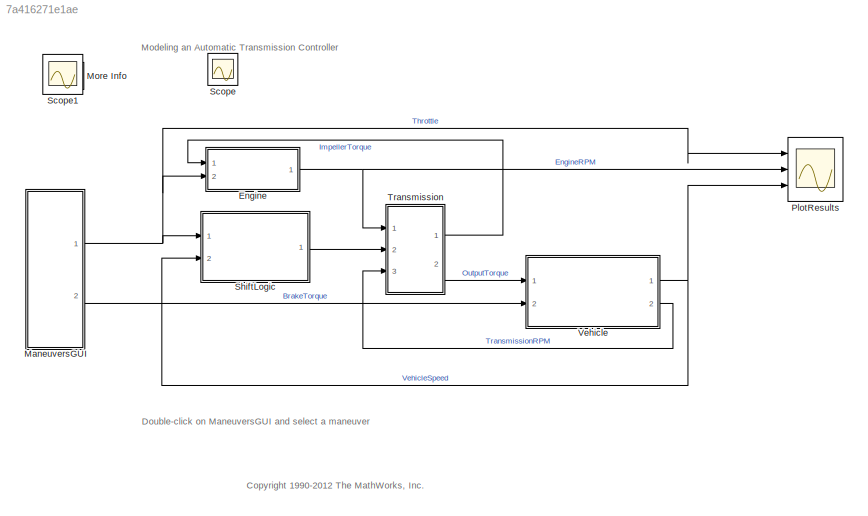
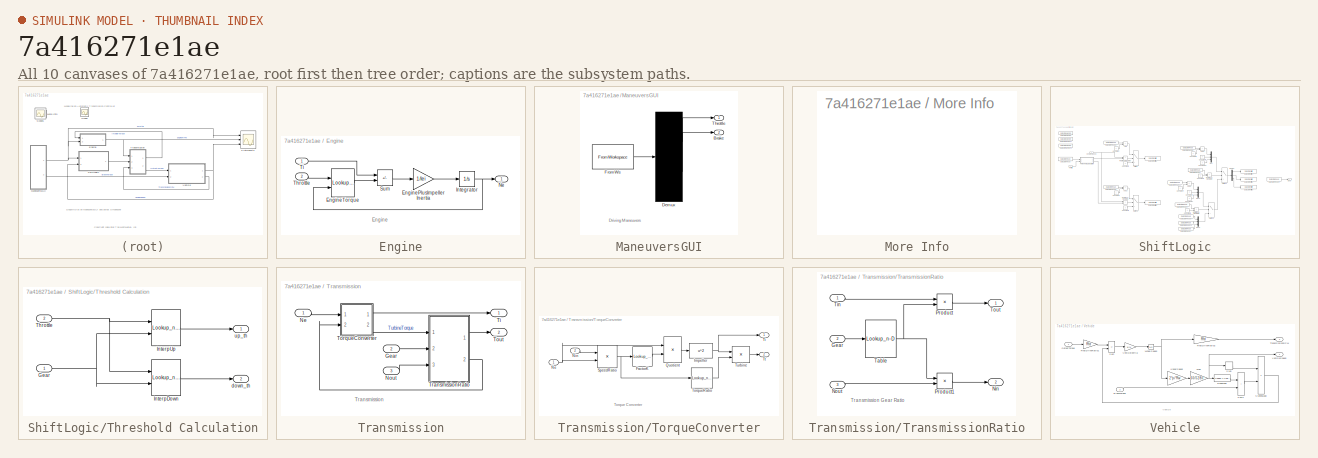
[diagram: thumbnail index - all 10 canvases of the model, root first then tree order]
MODEL slx_7a416271e1ae
KIND model
CONFIG AbsTol = 1e-6
CONFIG EnableMultiTasking = off
CONFIG FixedStep = auto
CONFIG MaxStep = auto
CONFIG MinStep = auto
CONFIG RelTol = 1e-3
CONFIG SampleTimeConstraint = Unconstrained
CONFIG SolverName = ode5
CONFIG StartTime = 0.0
CONFIG StopTime = 30
WORKSPACE source: mxarray member
WORKSPACE CONVERTER_DATA = [0 0.1 0.2 0.3 0.4 0.5 0.6 0.7 0.8 0.81 0.82 0.83 ... (63 elements, 21x3)]
WORKSPACE DOWN_TABLE = [0 0 0 0 0 0 5 5 5 5 30 30 ... (24 elements, 6x4)]
WORKSPACE DOWN_TH_BP = [0 5 40 50 90 100]
WORKSPACE EMAP = [-40 215 245 264 264 267 267 267 267 267 -44 117 ... (110 elements, 10x11)]
WORKSPACE Iei = 0.0219914882836
WORKSPACE NE_VEC = [800 1200 1600 2000 2400 2800 3200 3600 4000 4400 4800]
WORKSPACE TH_VEC = [0 20 30 40 50 60 70 80 90 100]
WORKSPACE TWAIT = 2
WORKSPACE UP_TABLE = [10 10 15 23 40 40 30 30 30 41 70 70 ... (24 elements, 6x4)]
WORKSPACE UP_TH_BP = [0 25 35 50 90 100]
WORKSPACE VEHICLE_DATA = [3.23 40 0.02 1 12.0941478573 0]
BLOCK [SubSystem] Engine
  Ports = [2, 1]
  RequestExecContextInheritance = off
BLOCK [Gain] Engine/EnginePlusImpellerInertia
  Gain = 1/Iei
  OutDataTypeStr = Inherit: Same as input
  ParamDataTypeStr = Inherit: Same as input
  SaturateOnIntegerOverflow = on
BLOCK [Lookup_n-D] Engine/EngineTorque
  BreakpointsForDimension1 = TH_VEC
  BreakpointsForDimension2 = NE_VEC
  InputPortMap = u0,u1
  Ports = [2, 1]
  Table = EMAP
BLOCK [Integrator] Engine/Integrator
  InitialCondition = 1000
  LimitOutput = on
  LowerSaturationLimit = 600
  Ports = [1, 1]
  UpperSaturationLimit = 6000
  ZeroCross = off
BLOCK [Outport] Engine/Ne
  VectorParamsAs1DForOutWhenUnconnected = off
BLOCK [Sum] Engine/Sum
  IconShape = rectangular
  InputSameDT = on
  Inputs = -+
  OutDataTypeStr = Inherit: Same as first input
  Ports = [2, 1]
  SaturateOnIntegerOverflow = on
BLOCK [Inport] Engine/Throttle
  Port = 2
BLOCK [Inport] Engine/Ti
BLOCK [SubSystem] ManeuversGUI
  ClipboardFcn = sigbuilder_block('clipboard');
  CloseFcn = sigbuilder_block('close');
  ContinueFcn = sigbuilder_block('continue')
  CopyFcn = sigbuilder_block('copy');
  DeleteFcn = sigbuilder_block('delete');
  LoadFcn = sigbuilder_block('load');
  MaskHideContents = on
  ModelCloseFcn = sigbuilder_block('modelClose');
  NameChangeFcn = sigbuilder_block('namechange');
  OpenFcn = sigbuilder_block('open',[80.8 328 413.6 257.6 ]);
  PauseFcn = sigbuilder_block('pause')
  Ports = [0, 2]
  PreSaveFcn = sigbuilder_block('preSave');
  RequestExecContextInheritance = off
  StartFcn = sigbuilder_block('start');
  StopFcn = sigbuilder_block('stop');
  Tag = STV Subsys
BLOCK [Outport] ManeuversGUI/Brake
  Port = 2
  Tag = STV Outport
  VectorParamsAs1DForOutWhenUnconnected = off
BLOCK [Demux] ManeuversGUI/Demux
  DisplayOption = none
  Outputs = 2
  Ports = [1, 2]
  Tag = STV Demux
BLOCK [FromWorkspace] ManeuversGUI/FromWs
  Tag = STV FromWs
  VariableName = tuvar
  ZeroCross = off
BLOCK [Outport] ManeuversGUI/Throttle
  Tag = STV Outport
  VectorParamsAs1DForOutWhenUnconnected = off
BLOCK [SubSystem] More Info
  OpenFcn = showdemo(bdroot(gcb))
  Ports = []
  RequestExecContextInheritance = off
BLOCK [Scope] PlotResults
  Floating = off
  NumInputPorts = 3
  Ports = [3]
  ScopeSpecificationString = Simulink.scopes.TimeScopeBlockCfg('CurrentConfiguration', extmgr.ConfigurationSet(extmgr.Configuration('Core','General UI',true),extmgr.Configuration('Core','Source UI',true),extmgr.Configuration('Sources','WiredSimulink',true,'DataLoggingSaveFormat','StructureWithTime','DataLoggingDecimation','1','DataLoggingDecimateData',true),extmgr.Configuration('Visuals','Time Domain',true,'TimeAxisLabels','A...<+3063ch>
BLOCK [Scope] Scope
  Floating = off
  IOType = viewer
  NumInputPorts = 1
  Ports = []
  ScopeSpecificationString = Simulink.scopes.TimeScopeBlockCfg('CurrentConfiguration', extmgr.ConfigurationSet(extmgr.Configuration('Core','General UI',true),extmgr.Configuration('Core','Source UI',true),extmgr.Configuration('Sources','WiredSimulink',true,'DataLoggingVariableName','ScopeData1'),extmgr.Configuration('Visuals','Time Domain',true,'SerializedDisplays',{struct('MinYLimReal','0.625','MaxYLimReal','4.375','YLabelRea...<+1351ch>
BLOCK [Scope] Scope1
  Floating = off
  IOType = viewer
  NumInputPorts = 1
  Ports = []
  ScopeSpecificationString = C++SS(StrPVP('Location','[74, 539, 357, 735]'),StrPVP('Open','off'),MxPVP('AxesTitles',54,'struct(''axes1'',''%<SignalLabel>'')'),StrPVP('ShowDataMarkers','off'),StrPVP('ShowLegends','off'),StrPVP('TimeRange','30'),StrPVP('YMin','1000'),StrPVP('YMax','5000'),StrPVP('MaxDataPoints','7500'),StrPVP('LimitDataPoints','on'),StrPVP('DataFormat','Array'),StrPVP('Decimation','1'),StrPVP('BlockParamSampleI...<+13ch>
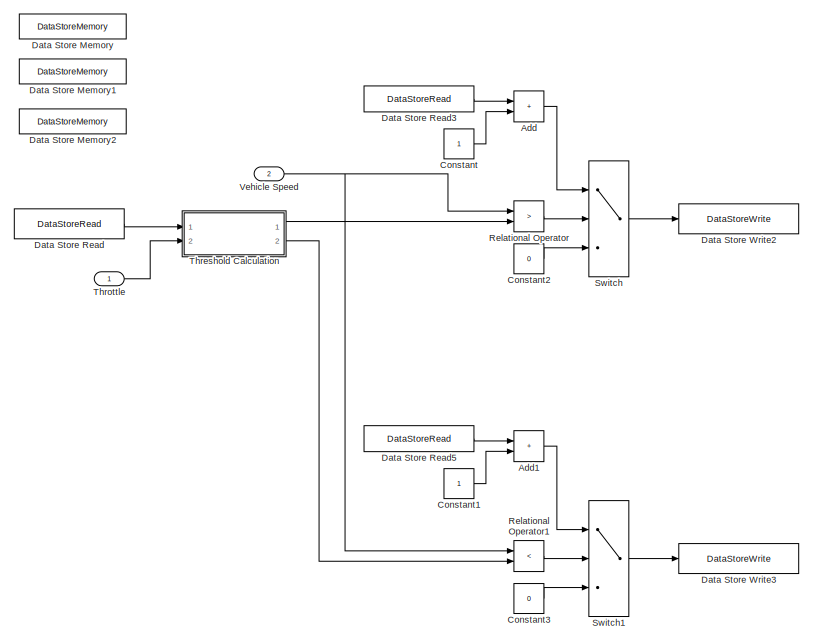
[diagram: ShiftLogic - part 1/2, left side, full height]
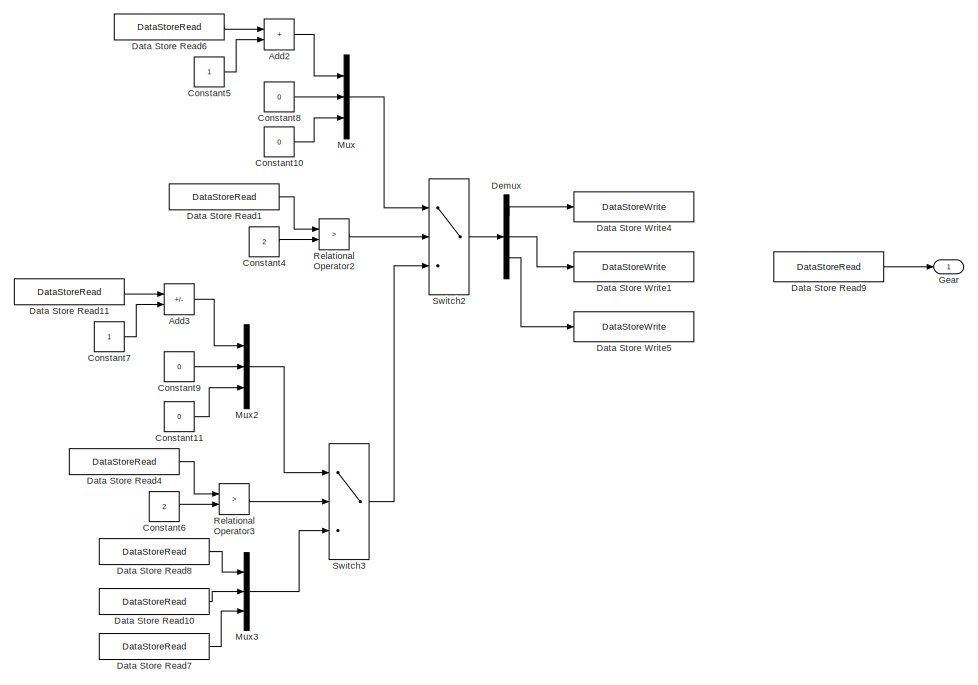
[diagram: ShiftLogic - part 2/2, right side, full height]
BLOCK [SubSystem] ShiftLogic
  Ports = [2, 1]
  RequestExecContextInheritance = off
  SystemSampleTime = 0.04
  TreatAsAtomicUnit = on
BLOCK [Sum] ShiftLogic/Add
  IconShape = rectangular
  Ports = [2, 1]
BLOCK [Sum] ShiftLogic/Add1
  IconShape = rectangular
  Ports = [2, 1]
BLOCK [Sum] ShiftLogic/Add2
  IconShape = rectangular
  Ports = [2, 1]
BLOCK [Sum] ShiftLogic/Add3
  IconShape = rectangular
  Inputs = +-
  Ports = [2, 1]
BLOCK [Constant] ShiftLogic/Constant
BLOCK [Constant] ShiftLogic/Constant1
BLOCK [Constant] ShiftLogic/Constant10
  Value = 0
BLOCK [Constant] ShiftLogic/Constant11
  Value = 0
BLOCK [Constant] ShiftLogic/Constant2
  Value = 0
BLOCK [Constant] ShiftLogic/Constant3
  Value = 0
BLOCK [Constant] ShiftLogic/Constant4
  Value = 2
BLOCK [Constant] ShiftLogic/Constant5
BLOCK [Constant] ShiftLogic/Constant6
  Value = 2
BLOCK [Constant] ShiftLogic/Constant7
BLOCK [Constant] ShiftLogic/Constant8
  Value = 0
BLOCK [Constant] ShiftLogic/Constant9
  Value = 0
BLOCK [DataStoreMemory] ShiftLogic/Data Store Memory
  AttributesFormatString = Priority: %<Priority>
  DataStoreName = Gear
  InitialValue = 1
  Priority = 1
  ReadBeforeWriteMsg = warning
  ShowAdditionalParam = off
  WriteAfterReadMsg = warning
  WriteAfterWriteMsg = warning
BLOCK [DataStoreMemory] ShiftLogic/Data Store Memory1
  AttributesFormatString = Priority: %<Priority>
  DataStoreName = upshift_flag
  Priority = 1
  ReadBeforeWriteMsg = warning
  ShowAdditionalParam = off
  WriteAfterReadMsg = warning
  WriteAfterWriteMsg = warning
BLOCK [DataStoreMemory] ShiftLogic/Data Store Memory2
  AttributesFormatString = Priority: %<Priority>
  DataStoreName = downshift_flag
  Priority = 1
  ReadBeforeWriteMsg = warning
  ShowAdditionalParam = off
  WriteAfterReadMsg = warning
  WriteAfterWriteMsg = warning
BLOCK [DataStoreRead] ShiftLogic/Data Store Read
  AttributesFormatString = Priority: %<Priority>
  DataStoreName = Gear
  IndexOptions = Index vector (dialog)
  Indices = 1
  OutputSizes = 1
  Ports = [0, 1]
  Priority = 10
BLOCK [DataStoreRead] ShiftLogic/Data Store Read1
  AttributesFormatString = Priority: %<Priority>
  DataStoreName = upshift_flag
  IndexOptions = Index vector (dialog)
  Indices = 1
  OutputSizes = 1
  Ports = [0, 1]
  Priority = 30
BLOCK [DataStoreRead] ShiftLogic/Data Store Read10
  AttributesFormatString = Priority: %<Priority>
  DataStoreName = upshift_flag
  IndexOptions = Index vector (dialog)
  Indices = 1
  OutputSizes = 1
  Ports = [0, 1]
  Priority = 30
BLOCK [DataStoreRead] ShiftLogic/Data Store Read11
  AttributesFormatString = Priority: %<Priority>
  DataStoreName = Gear
  IndexOptions = Index vector (dialog)
  Indices = 1
  OutputSizes = 1
  Ports = [0, 1]
  Priority = 10
BLOCK [DataStoreRead] ShiftLogic/Data Store Read3
  AttributesFormatString = Priority: %<Priority>
  DataStoreName = upshift_flag
  IndexOptions = Index vector (dialog)
  Indices = 1
  OutputSizes = 1
  Ports = [0, 1]
  Priority = 10
BLOCK [DataStoreRead] ShiftLogic/Data Store Read4
  AttributesFormatString = Priority: %<Priority>
  DataStoreName = downshift_flag
  IndexOptions = Index vector (dialog)
  Indices = 1
  OutputSizes = 1
  Ports = [0, 1]
  Priority = 30
BLOCK [DataStoreRead] ShiftLogic/Data Store Read5
  AttributesFormatString = Priority: %<Priority>
  DataStoreName = downshift_flag
  IndexOptions = Index vector (dialog)
  Indices = 1
  OutputSizes = 1
  Ports = [0, 1]
  Priority = 10
BLOCK [DataStoreRead] ShiftLogic/Data Store Read6
  AttributesFormatString = Priority: %<Priority>
  DataStoreName = Gear
  IndexOptions = Index vector (dialog)
  Indices = 1
  OutputSizes = 1
  Ports = [0, 1]
  Priority = 10
BLOCK [DataStoreRead] ShiftLogic/Data Store Read7
  AttributesFormatString = Priority: %<Priority>
  DataStoreName = downshift_flag
  IndexOptions = Index vector (dialog)
  Indices = 1
  OutputSizes = 1
  Ports = [0, 1]
  Priority = 30
BLOCK [DataStoreRead] ShiftLogic/Data Store Read8
  AttributesFormatString = Priority: %<Priority>
  DataStoreName = Gear
  IndexOptions = Index vector (dialog)
  Indices = 1
  OutputSizes = 1
  Ports = [0, 1]
  Priority = 10
BLOCK [DataStoreRead] ShiftLogic/Data Store Read9
  AttributesFormatString = Priority: %<Priority>
  DataStoreName = Gear
  IndexOptions = Index vector (dialog)
  Indices = 1
  OutputSizes = 1
  Ports = [0, 1]
  Priority = 50
BLOCK [DataStoreWrite] ShiftLogic/Data Store Write1
  DataStoreName = upshift_flag
  IndexOptions = Index vector (dialog)
  Indices = 1
  OutputSizes = 1
  Ports = [1]
BLOCK [DataStoreWrite] ShiftLogic/Data Store Write2
  AttributesFormatString = Priority: %<Priority>
  DataStoreName = upshift_flag
  IndexOptions = Index vector (dialog)
  Indices = 1
  OutputSizes = 1
  Ports = [1]
  Priority = 20
BLOCK [DataStoreWrite] ShiftLogic/Data Store Write3
  AttributesFormatString = Priority: %<Priority>
  DataStoreName = downshift_flag
  IndexOptions = Index vector (dialog)
  Indices = 1
  OutputSizes = 1
  Ports = [1]
  Priority = 20
BLOCK [DataStoreWrite] ShiftLogic/Data Store Write4
  AttributesFormatString = Priority: %<Priority>
  DataStoreName = Gear
  IndexOptions = Index vector (dialog)
  Indices = 1
  OutputSizes = 1
  Ports = [1]
  Priority = 40
BLOCK [DataStoreWrite] ShiftLogic/Data Store Write5
  DataStoreName = downshift_flag
  IndexOptions = Index vector (dialog)
  Indices = 1
  OutputSizes = 1
  Ports = [1]
BLOCK [Demux] ShiftLogic/Demux
  Outputs = 3
  Ports = [1, 3]
BLOCK [Outport] ShiftLogic/Gear
  VectorParamsAs1DForOutWhenUnconnected = off
BLOCK [Mux] ShiftLogic/Mux
  DisplayOption = bar
  Inputs = 3
  Ports = [3, 1]
BLOCK [Mux] ShiftLogic/Mux2
  DisplayOption = bar
  Inputs = 3
  Ports = [3, 1]
BLOCK [Mux] ShiftLogic/Mux3
  DisplayOption = bar
  Inputs = 3
  Ports = [3, 1]
BLOCK [RelationalOperator] ShiftLogic/Relational Operator
  InputSameDT = off
  Operator = >
  OutDataTypeStr = boolean
  Ports = [2, 1]
  StartFcn = relationOpBlks(1) = add_exec_event_listener(gcb,'PostOutputs', @checkRuntimeData); \nrelationOpBlks(1) = add_exec_event_listener(gcb,'PostOutputs', @checkRuntimeData); \nrelationOpBlks(1) = add_exec_event_listener(gcb,'PostOutputs', @checkRuntimeData); \nrelationOpBlks(1) = add_exec_event_listener(gcb,'PostOutputs', @checkRuntimeData);
BLOCK [RelationalOperator] ShiftLogic/Relational Operator1
  InputSameDT = off
  Operator = <
  OutDataTypeStr = boolean
  Ports = [2, 1]
  StartFcn = relationOpBlks(2) = add_exec_event_listener(gcb,'PostOutputs', @checkRuntimeData); \nrelationOpBlks(2) = add_exec_event_listener(gcb,'PostOutputs', @checkRuntimeData); \nrelationOpBlks(2) = add_exec_event_listener(gcb,'PostOutputs', @checkRuntimeData); \nrelationOpBlks(2) = add_exec_event_listener(gcb,'PostOutputs', @checkRuntimeData);
BLOCK [RelationalOperator] ShiftLogic/Relational Operator2
  InputSameDT = off
  Operator = >
  OutDataTypeStr = boolean
  Ports = [2, 1]
  StartFcn = relationOpBlks(3) = add_exec_event_listener(gcb,'PostOutputs', @checkRuntimeData); \nrelationOpBlks(3) = add_exec_event_listener(gcb,'PostOutputs', @checkRuntimeData); \nrelationOpBlks(3) = add_exec_event_listener(gcb,'PostOutputs', @checkRuntimeData); \nrelationOpBlks(3) = add_exec_event_listener(gcb,'PostOutputs', @checkRuntimeData);
BLOCK [RelationalOperator] ShiftLogic/Relational Operator3
  InputSameDT = off
  Operator = >
  OutDataTypeStr = boolean
  Ports = [2, 1]
  StartFcn = relationOpBlks(4) = add_exec_event_listener(gcb,'PostOutputs', @checkRuntimeData); \nrelationOpBlks(4) = add_exec_event_listener(gcb,'PostOutputs', @checkRuntimeData); \nrelationOpBlks(4) = add_exec_event_listener(gcb,'PostOutputs', @checkRuntimeData); \nrelationOpBlks(4) = add_exec_event_listener(gcb,'PostOutputs', @checkRuntimeData);
BLOCK [Switch] ShiftLogic/Switch
  Criteria = u2 > Threshold
  InputSameDT = off
  SaturateOnIntegerOverflow = off
BLOCK [Switch] ShiftLogic/Switch1
  Criteria = u2 > Threshold
  InputSameDT = off
  SaturateOnIntegerOverflow = off
BLOCK [Switch] ShiftLogic/Switch2
  Criteria = u2 > Threshold
  InputSameDT = off
  SaturateOnIntegerOverflow = off
  StartFcn = switchBlks(3) = add_exec_event_listener(gcb,'PostOutputs', @checkRuntimeData); \nswitchBlks(3) = add_exec_event_listener(gcb,'PostOutputs', @checkRuntimeData); \nswitchBlks(3) = add_exec_event_listener(gcb,'PostOutputs', @checkRuntimeData); \nswitchBlks(3) = add_exec_event_listener(gcb,'PostOutputs', @checkRuntimeData);
BLOCK [Switch] ShiftLogic/Switch3
  Criteria = u2 > Threshold
  InputSameDT = off
  SaturateOnIntegerOverflow = off
  StartFcn = switchBlks(4) = add_exec_event_listener(gcb,'PostOutputs', @checkRuntimeData); \nswitchBlks(4) = add_exec_event_listener(gcb,'PostOutputs', @checkRuntimeData); \nswitchBlks(4) = add_exec_event_listener(gcb,'PostOutputs', @checkRuntimeData); \nswitchBlks(4) = add_exec_event_listener(gcb,'PostOutputs', @checkRuntimeData);
BLOCK [SubSystem] ShiftLogic/Threshold Calculation
  Ports = [2, 2]
  RequestExecContextInheritance = off
BLOCK [Inport] ShiftLogic/Threshold Calculation/Gear
BLOCK [Lookup_n-D] ShiftLogic/Threshold Calculation/InterpDown
  BreakpointsForDimension1 = DOWN_TH_BP
  BreakpointsForDimension2 = [1:4]
  InputPortMap = u0,u1
  InputSameDT = off
  LockScale = on
  OutDataTypeStr = double
  Ports = [2, 1]
  Table = DOWN_TABLE
BLOCK [Lookup_n-D] ShiftLogic/Threshold Calculation/InterpUp
  BreakpointsForDimension1 = UP_TH_BP
  BreakpointsForDimension2 = [1:4]
  InputPortMap = u0,u1
  InputSameDT = off
  LockScale = on
  OutDataTypeStr = double
  Ports = [2, 1]
  Table = UP_TABLE
BLOCK [Inport] ShiftLogic/Threshold Calculation/Throttle
  Port = 2
BLOCK [Outport] ShiftLogic/Threshold Calculation/down_th
  InitialOutput = 0
  Port = 2
  VectorParamsAs1DForOutWhenUnconnected = off
BLOCK [Outport] ShiftLogic/Threshold Calculation/up_th
  InitialOutput = 0
  VectorParamsAs1DForOutWhenUnconnected = off
BLOCK [Inport] ShiftLogic/Throttle
BLOCK [Inport] ShiftLogic/Vehicle Speed
  Port = 2
BLOCK [SubSystem] Transmission
  Ports = [3, 2]
  RequestExecContextInheritance = off
BLOCK [Inport] Transmission/Gear
  Port = 2
BLOCK [Inport] Transmission/Ne
BLOCK [Inport] Transmission/Nout
  Port = 3
BLOCK [Outport] Transmission/Ti
  VectorParamsAs1DForOutWhenUnconnected = off
BLOCK [SubSystem] Transmission/TorqueConverter
  Ports = [2, 2]
  RequestExecContextInheritance = off
  ShowPortLabels = none
BLOCK [Lookup_n-D] Transmission/TorqueConverter/FactorK
  BreakpointsForDimension1 = speedratio
  InputPortMap = u0
  NumberOfTableDimensions = 1
  Ports = [1, 1]
  SaturateOnIntegerOverflow = on
  Table = Kfactor
BLOCK [Fcn] Transmission/TorqueConverter/Impeller
  Expr = u^2
BLOCK [Inport] Transmission/TorqueConverter/Ne
BLOCK [Inport] Transmission/TorqueConverter/Nin
  Port = 2
BLOCK [Product] Transmission/TorqueConverter/Quotient
  InputSameDT = on
  Inputs = */
  OutDataTypeStr = Inherit: Same as first input
  Ports = [2, 1]
  SaturateOnIntegerOverflow = on
BLOCK [Product] Transmission/TorqueConverter/SpeedRatio
  InputSameDT = on
  Inputs = */
  OutDataTypeStr = Inherit: Same as first input
  Ports = [2, 1]
  SaturateOnIntegerOverflow = on
BLOCK [Outport] Transmission/TorqueConverter/Ti
  VectorParamsAs1DForOutWhenUnconnected = off
BLOCK [Lookup_n-D] Transmission/TorqueConverter/TorqueRatio
  BreakpointsForDimension1 = speedratio
  InputPortMap = u0
  NumberOfTableDimensions = 1
  Ports = [1, 1]
  SaturateOnIntegerOverflow = on
  Table = Torkratio
BLOCK [Outport] Transmission/TorqueConverter/Tt
  Port = 2
  VectorParamsAs1DForOutWhenUnconnected = off
BLOCK [Product] Transmission/TorqueConverter/Turbine
  InputSameDT = on
  OutDataTypeStr = Inherit: Same as first input
  Ports = [2, 1]
  SaturateOnIntegerOverflow = on
BLOCK [Outport] Transmission/Tout
  Port = 2
  VectorParamsAs1DForOutWhenUnconnected = off
BLOCK [SubSystem] Transmission/TransmissionRatio
  Ports = [3, 2]
  RequestExecContextInheritance = off
BLOCK [Inport] Transmission/TransmissionRatio/Gear
  Port = 2
BLOCK [Outport] Transmission/TransmissionRatio/Nin
  Port = 2
  VectorParamsAs1DForOutWhenUnconnected = off
BLOCK [Inport] Transmission/TransmissionRatio/Nout
  Port = 3
BLOCK [Product] Transmission/TransmissionRatio/Product
  InputSameDT = on
  OutDataTypeStr = Inherit: Same as first input
  Ports = [2, 1]
  SaturateOnIntegerOverflow = on
BLOCK [Product] Transmission/TransmissionRatio/Product1
  InputSameDT = on
  OutDataTypeStr = Inherit: Same as first input
  Ports = [2, 1]
  SaturateOnIntegerOverflow = on
BLOCK [Lookup_n-D] Transmission/TransmissionRatio/Table
  BreakpointsForDimension1 = [1 2 3 4]
  InputPortMap = u0
  LockScale = on
  NumberOfTableDimensions = 1
  OutDataTypeStr = double
  Ports = [1, 1]
  SaturateOnIntegerOverflow = on
  Table = [2.393 1.450 1.000 0.677]
BLOCK [Inport] Transmission/TransmissionRatio/Tin
BLOCK [Outport] Transmission/TransmissionRatio/Tout
  VectorParamsAs1DForOutWhenUnconnected = off
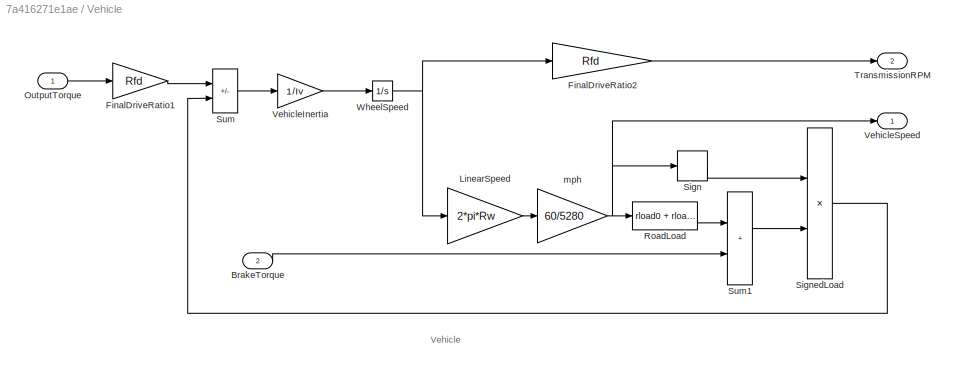
BLOCK [SubSystem] Vehicle
  Ports = [2, 2]
  RequestExecContextInheritance = off
  ShowPortLabels = none
BLOCK [Inport] Vehicle/BrakeTorque
  Port = 2
BLOCK [Gain] Vehicle/FinalDriveRatio1
  Gain = Rfd
  OutDataTypeStr = Inherit: Same as input
  ParamDataTypeStr = Inherit: Same as input
  SaturateOnIntegerOverflow = on
BLOCK [Gain] Vehicle/FinalDriveRatio2
  Gain = Rfd
  OutDataTypeStr = Inherit: Same as input
  ParamDataTypeStr = Inherit: Same as input
  SaturateOnIntegerOverflow = on
BLOCK [Gain] Vehicle/LinearSpeed
  Gain = 2*pi*Rw
  OutDataTypeStr = Inherit: Same as input
  ParamDataTypeStr = Inherit: Same as input
  SaturateOnIntegerOverflow = on
BLOCK [Inport] Vehicle/OutputTorque
BLOCK [Fcn] Vehicle/RoadLoad
  Expr = rload0 + rload2*u^2
BLOCK [Signum] Vehicle/Sign
BLOCK [Product] Vehicle/SignedLoad
  InputSameDT = on
  OutDataTypeStr = Inherit: Same as first input
  Ports = [2, 1]
  SaturateOnIntegerOverflow = on
BLOCK [Sum] Vehicle/Sum
  IconShape = rectangular
  InputSameDT = on
  Inputs = +-
  OutDataTypeStr = Inherit: Same as first input
  Ports = [2, 1]
  SaturateOnIntegerOverflow = on
BLOCK [Sum] Vehicle/Sum1
  IconShape = rectangular
  InputSameDT = on
  OutDataTypeStr = Inherit: Same as first input
  Ports = [2, 1]
  SaturateOnIntegerOverflow = on
BLOCK [Outport] Vehicle/TransmissionRPM
  Port = 2
  VectorParamsAs1DForOutWhenUnconnected = off
BLOCK [Gain] Vehicle/VehicleInertia
  Gain = 1/Iv
  OutDataTypeStr = Inherit: Same as input
  ParamDataTypeStr = Inherit: Same as input
  SaturateOnIntegerOverflow = on
BLOCK [Outport] Vehicle/VehicleSpeed
  VectorParamsAs1DForOutWhenUnconnected = off
BLOCK [Integrator] Vehicle/WheelSpeed
  InitialCondition = N20/Rfd
  Ports = [1, 1]
  ZeroCross = off
BLOCK [Gain] Vehicle/mph
  Gain = 60/5280
  OutDataTypeStr = Inherit: Same as input
  ParamDataTypeStr = Inherit: Same as input
  SaturateOnIntegerOverflow = on
ANNOTATION (root): Double-click on ManeuversGUI and select a maneuver
ANNOTATION (root): <copyright redacted>
ANNOTATION (root): Modeling an Automatic Transmission Controller
ANNOTATION Engine: Engine
ANNOTATION ManeuversGUI: Driving Maneuvers
ANNOTATION Transmission: Transmission
ANNOTATION Transmission/TorqueConverter: Torque Converter
ANNOTATION Transmission/TransmissionRatio: Transmission Gear Ratio
ANNOTATION Vehicle: Vehicle
LINE Engine/EnginePlusImpellerInertia:1 -> Engine/Integrator:1
LINE Engine/EngineTorque:1 -> Engine/Sum:2
NET Engine/Integrator:1 -> Engine/EngineTorque:2, Engine/Ne:1
LINE Engine/Sum:1 -> Engine/EnginePlusImpellerInertia:1
LINE Engine/Throttle:1 -> Engine/EngineTorque:1
LINE Engine/Ti:1 -> Engine/Sum:1
NET Engine:1 -> PlotResults:2, Transmission:1
LINE ManeuversGUI/Demux:1 -> ManeuversGUI/Throttle:1
LINE ManeuversGUI/Demux:2 -> ManeuversGUI/Brake:1
LINE ManeuversGUI/FromWs:1 -> ManeuversGUI/Demux:1
NET ManeuversGUI:1 -> Engine:2, PlotResults:1, ShiftLogic:1
LINE ManeuversGUI:2 -> Vehicle:2
LINE ShiftLogic/Add1:1 -> ShiftLogic/Switch1:1
LINE ShiftLogic/Add2:1 -> ShiftLogic/Mux:1
LINE ShiftLogic/Add3:1 -> ShiftLogic/Mux2:1
LINE ShiftLogic/Add:1 -> ShiftLogic/Switch:1
LINE ShiftLogic/Constant10:1 -> ShiftLogic/Mux:3
LINE ShiftLogic/Constant11:1 -> ShiftLogic/Mux2:3
LINE ShiftLogic/Constant1:1 -> ShiftLogic/Add1:2
LINE ShiftLogic/Constant2:1 -> ShiftLogic/Switch:3
LINE ShiftLogic/Constant3:1 -> ShiftLogic/Switch1:3
LINE ShiftLogic/Constant4:1 -> ShiftLogic/Relational Operator2:2
LINE ShiftLogic/Constant5:1 -> ShiftLogic/Add2:2
LINE ShiftLogic/Constant6:1 -> ShiftLogic/Relational Operator3:2
LINE ShiftLogic/Constant7:1 -> ShiftLogic/Add3:2
LINE ShiftLogic/Constant8:1 -> ShiftLogic/Mux:2
LINE ShiftLogic/Constant9:1 -> ShiftLogic/Mux2:2
LINE ShiftLogic/Constant:1 -> ShiftLogic/Add:2
LINE ShiftLogic/Data Store Read10:1 -> ShiftLogic/Mux3:2
LINE ShiftLogic/Data Store Read11:1 -> ShiftLogic/Add3:1
LINE ShiftLogic/Data Store Read1:1 -> ShiftLogic/Relational Operator2:1
LINE ShiftLogic/Data Store Read3:1 -> ShiftLogic/Add:1
LINE ShiftLogic/Data Store Read4:1 -> ShiftLogic/Relational Operator3:1
LINE ShiftLogic/Data Store Read5:1 -> ShiftLogic/Add1:1
LINE ShiftLogic/Data Store Read6:1 -> ShiftLogic/Add2:1
LINE ShiftLogic/Data Store Read7:1 -> ShiftLogic/Mux3:3
LINE ShiftLogic/Data Store Read8:1 -> ShiftLogic/Mux3:1
LINE ShiftLogic/Data Store Read9:1 -> ShiftLogic/Gear:1
LINE ShiftLogic/Data Store Read:1 -> ShiftLogic/Threshold Calculation:1
LINE ShiftLogic/Demux:1 -> ShiftLogic/Data Store Write4:1
LINE ShiftLogic/Demux:2 -> ShiftLogic/Data Store Write1:1
LINE ShiftLogic/Demux:3 -> ShiftLogic/Data Store Write5:1
LINE ShiftLogic/Mux2:1 -> ShiftLogic/Switch3:1
LINE ShiftLogic/Mux3:1 -> ShiftLogic/Switch3:3
LINE ShiftLogic/Mux:1 -> ShiftLogic/Switch2:1
LINE ShiftLogic/Relational Operator1:1 -> ShiftLogic/Switch1:2
LINE ShiftLogic/Relational Operator2:1 -> ShiftLogic/Switch2:2
LINE ShiftLogic/Relational Operator3:1 -> ShiftLogic/Switch3:2
LINE ShiftLogic/Relational Operator:1 -> ShiftLogic/Switch:2
LINE ShiftLogic/Switch1:1 -> ShiftLogic/Data Store Write3:1
LINE ShiftLogic/Switch2:1 -> ShiftLogic/Demux:1
LINE ShiftLogic/Switch3:1 -> ShiftLogic/Switch2:3
LINE ShiftLogic/Switch:1 -> ShiftLogic/Data Store Write2:1
NET ShiftLogic/Threshold Calculation/Gear:1 -> ShiftLogic/Threshold Calculation/InterpDown:2, ShiftLogic/Threshold Calculation/InterpUp:2
LINE ShiftLogic/Threshold Calculation/InterpDown:1 -> ShiftLogic/Threshold Calculation/down_th:1
LINE ShiftLogic/Threshold Calculation/InterpUp:1 -> ShiftLogic/Threshold Calculation/up_th:1
NET ShiftLogic/Threshold Calculation/Throttle:1 -> ShiftLogic/Threshold Calculation/InterpDown:1, ShiftLogic/Threshold Calculation/InterpUp:1
LINE ShiftLogic/Threshold Calculation:1 -> ShiftLogic/Relational Operator:2
LINE ShiftLogic/Threshold Calculation:2 -> ShiftLogic/Relational Operator1:2
LINE ShiftLogic/Throttle:1 -> ShiftLogic/Threshold Calculation:2
NET ShiftLogic/Vehicle Speed:1 -> ShiftLogic/Relational Operator1:1, ShiftLogic/Relational Operator:1
LINE ShiftLogic:1 -> Transmission:2
LINE Transmission/Gear:1 -> Transmission/TransmissionRatio:2
LINE Transmission/Ne:1 -> Transmission/TorqueConverter:1
LINE Transmission/Nout:1 -> Transmission/TransmissionRatio:3
LINE Transmission/TorqueConverter/FactorK:1 -> Transmission/TorqueConverter/Quotient:2
NET Transmission/TorqueConverter/Impeller:1 -> Transmission/TorqueConverter/Ti:1, Transmission/TorqueConverter/Turbine:1
NET Transmission/TorqueConverter/Ne:1 -> Transmission/TorqueConverter/Quotient:1, Transmission/TorqueConverter/SpeedRatio:2
LINE Transmission/TorqueConverter/Nin:1 -> Transmission/TorqueConverter/SpeedRatio:1
LINE Transmission/TorqueConverter/Quotient:1 -> Transmission/TorqueConverter/Impeller:1
NET Transmission/TorqueConverter/SpeedRatio:1 -> Transmission/TorqueConverter/FactorK:1, Transmission/TorqueConverter/TorqueRatio:1
LINE Transmission/TorqueConverter/TorqueRatio:1 -> Transmission/TorqueConverter/Turbine:2
LINE Transmission/TorqueConverter/Turbine:1 -> Transmission/TorqueConverter/Tt:1
LINE Transmission/TorqueConverter:1 -> Transmission/Ti:1
LINE Transmission/TorqueConverter:2 -> Transmission/TransmissionRatio:1
LINE Transmission/TransmissionRatio/Gear:1 -> Transmission/TransmissionRatio/Table:1
LINE Transmission/TransmissionRatio/Nout:1 -> Transmission/TransmissionRatio/Product1:2
LINE Transmission/TransmissionRatio/Product1:1 -> Transmission/TransmissionRatio/Nin:1
LINE Transmission/TransmissionRatio/Product:1 -> Transmission/TransmissionRatio/Tout:1
NET Transmission/TransmissionRatio/Table:1 -> Transmission/TransmissionRatio/Product1:1, Transmission/TransmissionRatio/Product:2
LINE Transmission/TransmissionRatio/Tin:1 -> Transmission/TransmissionRatio/Product:1
LINE Transmission/TransmissionRatio:1 -> Transmission/Tout:1
LINE Transmission/TransmissionRatio:2 -> Transmission/TorqueConverter:2
LINE Transmission:1 -> Engine:1
LINE Transmission:2 -> Vehicle:1
LINE Vehicle/BrakeTorque:1 -> Vehicle/Sum1:2
LINE Vehicle/FinalDriveRatio1:1 -> Vehicle/Sum:1
LINE Vehicle/FinalDriveRatio2:1 -> Vehicle/TransmissionRPM:1
LINE Vehicle/LinearSpeed:1 -> Vehicle/mph:1
LINE Vehicle/OutputTorque:1 -> Vehicle/FinalDriveRatio1:1
LINE Vehicle/RoadLoad:1 -> Vehicle/Sum1:1
LINE Vehicle/Sign:1 -> Vehicle/SignedLoad:1
LINE Vehicle/SignedLoad:1 -> Vehicle/Sum:2
LINE Vehicle/Sum1:1 -> Vehicle/SignedLoad:2
LINE Vehicle/Sum:1 -> Vehicle/VehicleInertia:1
LINE Vehicle/VehicleInertia:1 -> Vehicle/WheelSpeed:1
NET Vehicle/WheelSpeed:1 -> Vehicle/FinalDriveRatio2:1, Vehicle/LinearSpeed:1
NET Vehicle/mph:1 -> Vehicle/RoadLoad:1, Vehicle/Sign:1, Vehicle/VehicleSpeed:1
NET Vehicle:1 -> PlotResults:3, ShiftLogic:2
LINE Vehicle:2 -> Transmission:3
note: NET lines group one-source signal fan-out (src -> all destinations, sorted); 1:1 wires keep LINE
